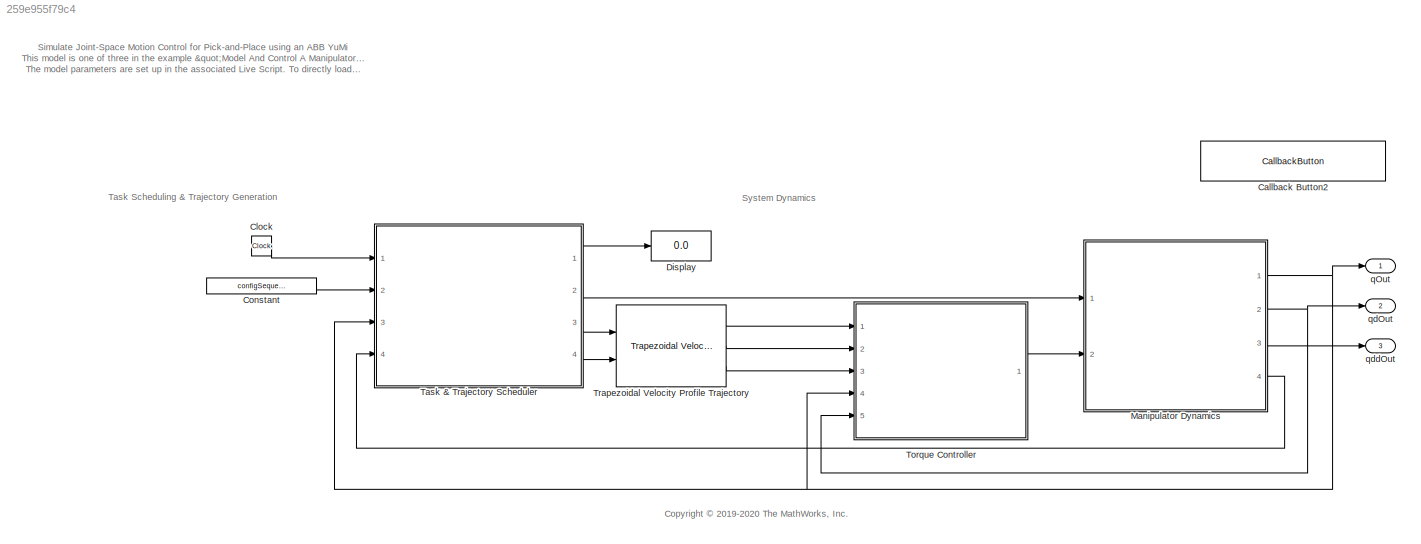
MODEL slx_259e955f79c4
KIND model
CONFIG AbsTol = 1e-2
CONFIG EnableMultiTasking = off
CONFIG FixedStep = auto
CONFIG MaxStep = 0.1
CONFIG MinStep = auto
CONFIG RelTol = 1e-2
CONFIG SampleTimeConstraint = Unconstrained
CONFIG SolverName = VariableStepAuto
CONFIG StartTime = 0.0
CONFIG StopTime = 20
WORKSPACE source: mxarray member
WORKSPACE jointLimits = [-2.94087978961 -2.50454747661 -2.94087978961 -2.15548162621 -5.06145483078 -1.53588974176 -3.99680398707 0 0 -2.94087978961 -2.50454747661 -2.94087978961 ... (36 elements, 18x2)]
BLOCK [CallbackButton] Callback Button2
  ButtonText = Load Default Parameters (will overwrite workspace)
  ClickFcn = robot = loadrobot('abbYumi', 'Gravity', [0 0 -9.81]);\nload abbExampleRSTVariables.mat;
BLOCK [Clock] Clock
BLOCK [Constant] Constant
  Value = configSequence
BLOCK [Display] Display
  Decimation = 1
  Ports = [1]
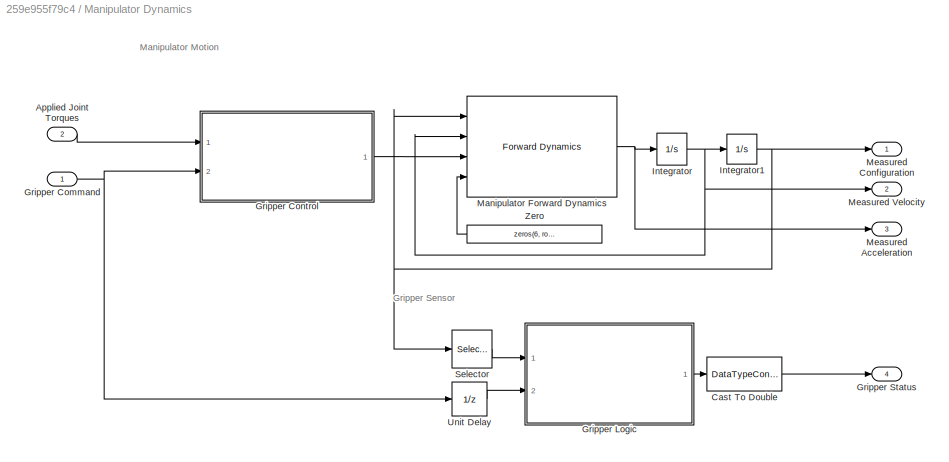
BLOCK [SubSystem] Manipulator Dynamics
  Ports = [2, 4]
  RequestExecContextInheritance = off
BLOCK [Inport] Manipulator Dynamics/Applied Joint Torques
  Port = 2
BLOCK [DataTypeConversion] Manipulator Dynamics/Cast To Double
  OutDataTypeStr = double
  RndMeth = Floor
  SaturateOnIntegerOverflow = off
BLOCK [Inport] Manipulator Dynamics/Gripper Command
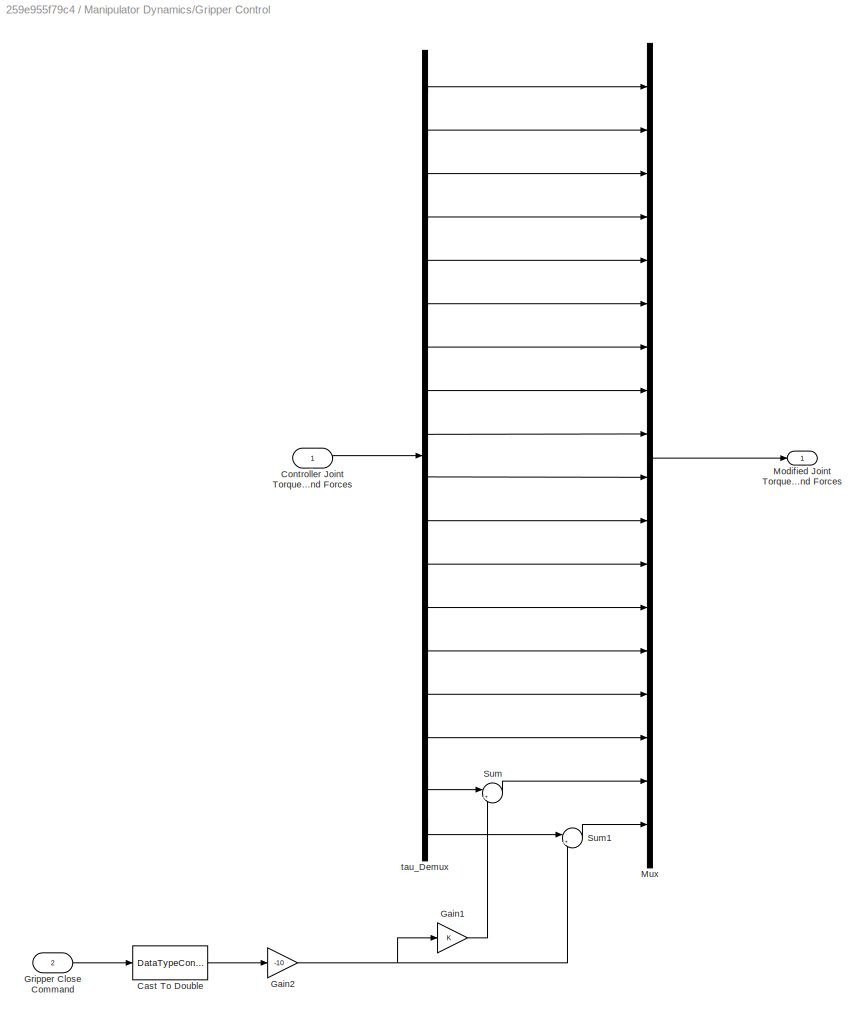
BLOCK [SubSystem] Manipulator Dynamics/Gripper Control
  Ports = [2, 1]
  RequestExecContextInheritance = off
BLOCK [DataTypeConversion] Manipulator Dynamics/Gripper Control/Cast To Double
  OutDataTypeStr = double
  RndMeth = Floor
  SaturateOnIntegerOverflow = off
BLOCK [Inport] Manipulator Dynamics/Gripper Control/Controller Joint Torques and Forces
BLOCK [Gain] Manipulator Dynamics/Gripper Control/Gain1
BLOCK [Gain] Manipulator Dynamics/Gripper Control/Gain2
  Gain = -10
BLOCK [Inport] Manipulator Dynamics/Gripper Control/Gripper Close Command
  Port = 2
BLOCK [Outport] Manipulator Dynamics/Gripper Control/Modified Joint Torques and Forces
BLOCK [Mux] Manipulator Dynamics/Gripper Control/Mux
  DisplayOption = bar
  Inputs = 18
  Ports = [18, 1]
BLOCK [Sum] Manipulator Dynamics/Gripper Control/Sum
  Inputs = |++
  Ports = [2, 1]
BLOCK [Sum] Manipulator Dynamics/Gripper Control/Sum1
  Inputs = |++
  Ports = [2, 1]
BLOCK [Demux] Manipulator Dynamics/Gripper Control/tau_Demux
  Outputs = 18
  Ports = [1, 18]
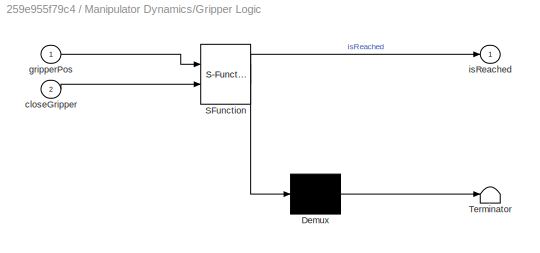
BLOCK [SubSystem] Manipulator Dynamics/Gripper Logic
  ErrorFcn = Stateflow.Translate.translate
  PermitHierarchicalResolution = ExplicitOnly
  Ports = [2, 1]
  RequestExecContextInheritance = off
  SFBlockType = MATLAB Function
  TreatAsAtomicUnit = on
BLOCK [Demux] Manipulator Dynamics/Gripper Logic/ Demux 
  Outputs = 1
  Ports = [1, 1]
BLOCK [S-Function] Manipulator Dynamics/Gripper Logic/ SFunction 
  EnableBusSupport = off
  FunctionName = sf_sfun
  PortCounts = [2 2]
  Ports = [2, 2]
  SFcnIsStateOwnerBlock = off
  SFunctionDeploymentMode = off
  Tag = Stateflow S-Function 1
BLOCK [Terminator] Manipulator Dynamics/Gripper Logic/ Terminator 
BLOCK [Inport] Manipulator Dynamics/Gripper Logic/closeGripper
  Port = 2
BLOCK [Inport] Manipulator Dynamics/Gripper Logic/gripperPos
BLOCK [Outport] Manipulator Dynamics/Gripper Logic/isReached
BLOCK [Outport] Manipulator Dynamics/Gripper Status
  Port = 4
  VectorParamsAs1DForOutWhenUnconnected = off
BLOCK [Integrator] Manipulator Dynamics/Integrator
  InitialCondition = dq0
  Ports = [1, 1]
BLOCK [Integrator] Manipulator Dynamics/Integrator1
  InitialCondition = q0
  LimitOutput = on
  LowerSaturationLimit = jointLimits(:,1)
  Ports = [1, 1]
  UpperSaturationLimit = jointLimits(:,2)
BLOCK [Reference] Manipulator Dynamics/Manipulator Forward Dynamics  REF=robotmaniplib/Forward Dynamics
  Ports = [4, 1]
  SourceBlock = robotmaniplib/Forward Dynamics
  SourceProductName = Robotics System Toolbox
  SourceType = Forward Dynamics
BLOCK [Outport] Manipulator Dynamics/Measured Acceleration
  Port = 3
  VectorParamsAs1DForOutWhenUnconnected = off
BLOCK [Outport] Manipulator Dynamics/Measured Configuration
  VectorParamsAs1DForOutWhenUnconnected = off
BLOCK [Outport] Manipulator Dynamics/Measured Velocity
  Port = 2
  VectorParamsAs1DForOutWhenUnconnected = off
BLOCK [Selector] Manipulator Dynamics/Selector
  IndexOptions = Index vector (dialog)
  Indices = [17 18]
  InputPortWidth = 18
  OutputSizes = 1
  Ports = [1, 1]
BLOCK [UnitDelay] Manipulator Dynamics/Unit Delay
  HasFrameUpgradeWarning = on
  SampleTime = -1
BLOCK [Constant] Manipulator Dynamics/Zero
  OutDataTypeStr = Inherit: Inherit via back propagation
  Value = zeros(6, robot.NumBodies)
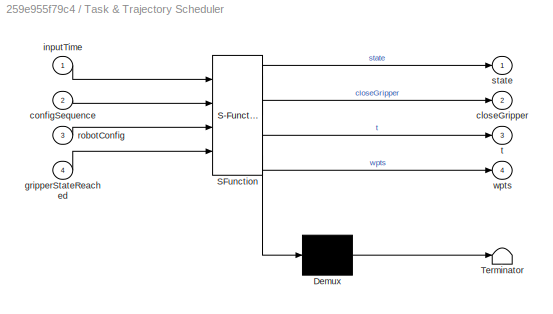
BLOCK [SubSystem] Task & Trajectory Scheduler
  ErrorFcn = Stateflow.Translate.translate
  PermitHierarchicalResolution = ExplicitOnly
  Ports = [4, 4]
  RequestExecContextInheritance = off
  SFBlockType = MATLAB Function
  TreatAsAtomicUnit = on
BLOCK [Demux] Task & Trajectory Scheduler/ Demux 
  Outputs = 1
  Ports = [1, 1]
BLOCK [S-Function] Task & Trajectory Scheduler/ SFunction 
  EnableBusSupport = off
  FunctionName = sf_sfun
  PortCounts = [4 5]
  Ports = [4, 5]
  SFcnIsStateOwnerBlock = off
  SFunctionDeploymentMode = off
  Tag = Stateflow S-Function 2
BLOCK [Terminator] Task & Trajectory Scheduler/ Terminator 
BLOCK [Outport] Task & Trajectory Scheduler/closeGripper
  Port = 2
BLOCK [Inport] Task & Trajectory Scheduler/configSequence
  Port = 2
BLOCK [Inport] Task & Trajectory Scheduler/gripperStateReached
  Port = 4
BLOCK [Inport] Task & Trajectory Scheduler/inputTime
BLOCK [Inport] Task & Trajectory Scheduler/robotConfig
  Port = 3
BLOCK [Outport] Task & Trajectory Scheduler/state
BLOCK [Outport] Task & Trajectory Scheduler/t
  Port = 3
BLOCK [Outport] Task & Trajectory Scheduler/wpts
  Port = 4
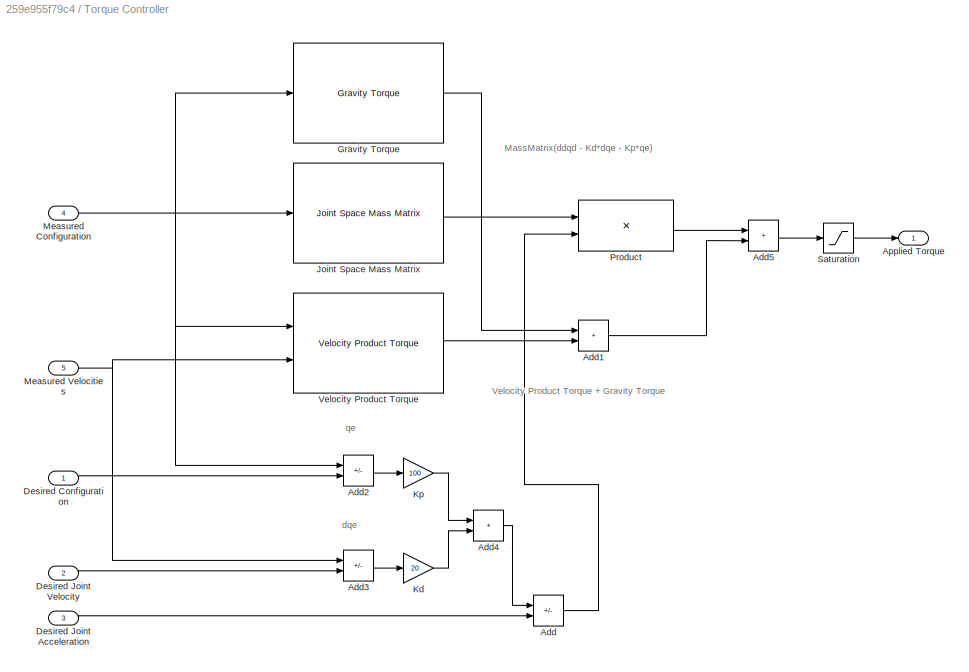
BLOCK [SubSystem] Torque Controller
  Ports = [5, 1]
  RequestExecContextInheritance = off
BLOCK [Sum] Torque Controller/Add
  IconShape = rectangular
  Inputs = -+
  Ports = [2, 1]
BLOCK [Sum] Torque Controller/Add1
  IconShape = rectangular
  Ports = [2, 1]
BLOCK [Sum] Torque Controller/Add2
  IconShape = rectangular
  Inputs = +-
  Ports = [2, 1]
BLOCK [Sum] Torque Controller/Add3
  IconShape = rectangular
  Inputs = +-
  Ports = [2, 1]
BLOCK [Sum] Torque Controller/Add4
  IconShape = rectangular
  Ports = [2, 1]
BLOCK [Sum] Torque Controller/Add5
  IconShape = rectangular
  Ports = [2, 1]
BLOCK [Outport] Torque Controller/Applied Torque
  VectorParamsAs1DForOutWhenUnconnected = off
BLOCK [Inport] Torque Controller/Desired Configuration
BLOCK [Inport] Torque Controller/Desired Joint Acceleration
  Port = 3
BLOCK [Inport] Torque Controller/Desired Joint Velocity
  Port = 2
BLOCK [Reference] Torque Controller/Gravity Torque  REF=robotmaniplib/Gravity Torque
  Ports = [1, 1]
  SourceBlock = robotmaniplib/Gravity Torque
  SourceProductName = Robotics System Toolbox
  SourceType = Gravity Torque
BLOCK [Reference] Torque Controller/Joint Space Mass Matrix  REF=robotmaniplib/Joint Space Mass Matrix
  Ports = [1, 1]
  SourceBlock = robotmaniplib/Joint Space Mass Matrix
  SourceProductName = Robotics System Toolbox
  SourceType = Joint Space Mass Matrix
BLOCK [Gain] Torque Controller/Kd
  Gain = 20
BLOCK [Gain] Torque Controller/Kp
  Gain = 100
BLOCK [Inport] Torque Controller/Measured Configuration
  Port = 4
BLOCK [Inport] Torque Controller/Measured Velocities
  Port = 5
BLOCK [Product] Torque Controller/Product
  Multiplication = Matrix(*)
  Ports = [2, 1]
BLOCK [Saturate] Torque Controller/Saturation
  LowerLimit = -100
  UpperLimit = 100
BLOCK [Reference] Torque Controller/Velocity Product Torque  REF=robotmaniplib/Velocity Product Torque
  Ports = [2, 1]
  SourceBlock = robotmaniplib/Velocity Product Torque
  SourceProductName = Robotics System Toolbox
  SourceType = Velocity Product Torque
BLOCK [Reference] Trapezoidal Velocity Profile Trajectory  REF=robotcorelib/Trapezoidal Velocity Profile Trajectory
  Ports = [2, 3]
  SourceBlock = robotcorelib/Trapezoidal Velocity Profile Trajectory
  SourceProductName = Robotics System Toolbox
  SourceType = robotics.slcore.internal.block.TrapVelTrajSys
BLOCK [Outport] qOut
BLOCK [Outport] qdOut
  Port = 2
BLOCK [Outport] qddOut
  Port = 3
ANNOTATION (root): <copyright redacted>
ANNOTATION (root): Simulate Joint-Space Motion Control for Pick-and-Place using an ABB YuMi This model is one of three in the example "Model And Control A Manipulator Arm with RST And Simscape". This model is one of three in the example "Model And Control A Manipulator Arm with RST And Simscape". The example shows how to design and simulate a pick-and-place task using an ABB YuMi arm. It also shows how to model a sy...<+470ch>
ANNOTATION (root): System Dynamics
ANNOTATION (root): Task Scheduling & Trajectory Generation
ANNOTATION Manipulator Dynamics: Gripper Sensor
ANNOTATION Manipulator Dynamics: Manipulator Motion
ANNOTATION Torque Controller: qe
ANNOTATION Torque Controller: dqe
ANNOTATION Torque Controller: MassMatrix(ddqd - Kd*dqe - Kp*qe)
ANNOTATION Torque Controller: Velocity Product Torque + Gravity Torque
LINE Clock:1 -> Task & Trajectory Scheduler:1
LINE Constant:1 -> Task & Trajectory Scheduler:2
LINE Manipulator Dynamics/Applied Joint Torques:1 -> Manipulator Dynamics/Gripper Control:1
LINE Manipulator Dynamics/Cast To Double:1 -> Manipulator Dynamics/Gripper Status:1
NET Manipulator Dynamics/Gripper Command:1 -> Manipulator Dynamics/Gripper Control:2, Manipulator Dynamics/Unit Delay:1
LINE Manipulator Dynamics/Gripper Control/Cast To Double:1 -> Manipulator Dynamics/Gripper Control/Gain2:1
LINE Manipulator Dynamics/Gripper Control/Controller Joint Torques and Forces:1 -> Manipulator Dynamics/Gripper Control/tau_Demux:1
LINE Manipulator Dynamics/Gripper Control/Gain1:1 -> Manipulator Dynamics/Gripper Control/Sum:2
NET Manipulator Dynamics/Gripper Control/Gain2:1 -> Manipulator Dynamics/Gripper Control/Gain1:1, Manipulator Dynamics/Gripper Control/Sum1:2
LINE Manipulator Dynamics/Gripper Control/Gripper Close Command:1 -> Manipulator Dynamics/Gripper Control/Cast To Double:1
LINE Manipulator Dynamics/Gripper Control/Mux:1 -> Manipulator Dynamics/Gripper Control/Modified Joint Torques and Forces:1
LINE Manipulator Dynamics/Gripper Control/Sum1:1 -> Manipulator Dynamics/Gripper Control/Mux:18
LINE Manipulator Dynamics/Gripper Control/Sum:1 -> Manipulator Dynamics/Gripper Control/Mux:17
LINE Manipulator Dynamics/Gripper Control/tau_Demux:1 -> Manipulator Dynamics/Gripper Control/Mux:1
LINE Manipulator Dynamics/Gripper Control/tau_Demux:10 -> Manipulator Dynamics/Gripper Control/Mux:10
LINE Manipulator Dynamics/Gripper Control/tau_Demux:11 -> Manipulator Dynamics/Gripper Control/Mux:11
LINE Manipulator Dynamics/Gripper Control/tau_Demux:12 -> Manipulator Dynamics/Gripper Control/Mux:12
LINE Manipulator Dynamics/Gripper Control/tau_Demux:13 -> Manipulator Dynamics/Gripper Control/Mux:13
LINE Manipulator Dynamics/Gripper Control/tau_Demux:14 -> Manipulator Dynamics/Gripper Control/Mux:14
LINE Manipulator Dynamics/Gripper Control/tau_Demux:15 -> Manipulator Dynamics/Gripper Control/Mux:15
LINE Manipulator Dynamics/Gripper Control/tau_Demux:16 -> Manipulator Dynamics/Gripper Control/Mux:16
LINE Manipulator Dynamics/Gripper Control/tau_Demux:17 -> Manipulator Dynamics/Gripper Control/Sum:1
LINE Manipulator Dynamics/Gripper Control/tau_Demux:18 -> Manipulator Dynamics/Gripper Control/Sum1:1
LINE Manipulator Dynamics/Gripper Control/tau_Demux:2 -> Manipulator Dynamics/Gripper Control/Mux:2
LINE Manipulator Dynamics/Gripper Control/tau_Demux:3 -> Manipulator Dynamics/Gripper Control/Mux:3
LINE Manipulator Dynamics/Gripper Control/tau_Demux:4 -> Manipulator Dynamics/Gripper Control/Mux:4
LINE Manipulator Dynamics/Gripper Control/tau_Demux:5 -> Manipulator Dynamics/Gripper Control/Mux:5
LINE Manipulator Dynamics/Gripper Control/tau_Demux:6 -> Manipulator Dynamics/Gripper Control/Mux:6
LINE Manipulator Dynamics/Gripper Control/tau_Demux:7 -> Manipulator Dynamics/Gripper Control/Mux:7
LINE Manipulator Dynamics/Gripper Control/tau_Demux:8 -> Manipulator Dynamics/Gripper Control/Mux:8
LINE Manipulator Dynamics/Gripper Control/tau_Demux:9 -> Manipulator Dynamics/Gripper Control/Mux:9
LINE Manipulator Dynamics/Gripper Control:1 -> Manipulator Dynamics/Manipulator Forward Dynamics:3
LINE Manipulator Dynamics/Gripper Logic:1 -> Manipulator Dynamics/Cast To Double:1
NET Manipulator Dynamics/Integrator1:1 -> Manipulator Dynamics/Manipulator Forward Dynamics:1, Manipulator Dynamics/Measured Configuration:1, Manipulator Dynamics/Selector:1
NET Manipulator Dynamics/Integrator:1 -> Manipulator Dynamics/Integrator1:1, Manipulator Dynamics/Manipulator Forward Dynamics:2, Manipulator Dynamics/Measured Velocity:1
NET Manipulator Dynamics/Manipulator Forward Dynamics:1 -> Manipulator Dynamics/Integrator:1, Manipulator Dynamics/Measured Acceleration:1
LINE Manipulator Dynamics/Selector:1 -> Manipulator Dynamics/Gripper Logic:1
LINE Manipulator Dynamics/Unit Delay:1 -> Manipulator Dynamics/Gripper Logic:2
LINE Manipulator Dynamics/Zero:1 -> Manipulator Dynamics/Manipulator Forward Dynamics:4
NET Manipulator Dynamics:1 -> Task & Trajectory Scheduler:3, Torque Controller:4, qOut:1
NET Manipulator Dynamics:2 -> Torque Controller:5, qdOut:1
LINE Manipulator Dynamics:3 -> qddOut:1
LINE Manipulator Dynamics:4 -> Task & Trajectory Scheduler:4
LINE Task & Trajectory Scheduler:1 -> Display:1
LINE Task & Trajectory Scheduler:2 -> Manipulator Dynamics:1
LINE Task & Trajectory Scheduler:3 -> Trapezoidal Velocity Profile Trajectory:1
LINE Task & Trajectory Scheduler:4 -> Trapezoidal Velocity Profile Trajectory:2
LINE Torque Controller/Add1:1 -> Torque Controller/Add5:2
LINE Torque Controller/Add2:1 -> Torque Controller/Kp:1
LINE Torque Controller/Add3:1 -> Torque Controller/Kd:1
LINE Torque Controller/Add4:1 -> Torque Controller/Add:1
LINE Torque Controller/Add5:1 -> Torque Controller/Saturation:1
LINE Torque Controller/Add:1 -> Torque Controller/Product:2
LINE Torque Controller/Desired Configuration:1 -> Torque Controller/Add2:2
LINE Torque Controller/Desired Joint Acceleration:1 -> Torque Controller/Add:2
LINE Torque Controller/Desired Joint Velocity:1 -> Torque Controller/Add3:2
LINE Torque Controller/Gravity Torque:1 -> Torque Controller/Add1:1
LINE Torque Controller/Joint Space Mass Matrix:1 -> Torque Controller/Product:1
LINE Torque Controller/Kd:1 -> Torque Controller/Add4:2
LINE Torque Controller/Kp:1 -> Torque Controller/Add4:1
NET Torque Controller/Measured Configuration:1 -> Torque Controller/Add2:1, Torque Controller/Gravity Torque:1, Torque Controller/Joint Space Mass Matrix:1, Torque Controller/Velocity Product Torque:1
NET Torque Controller/Measured Velocities:1 -> Torque Controller/Add3:1, Torque Controller/Velocity Product Torque:2
LINE Torque Controller/Product:1 -> Torque Controller/Add5:1
LINE Torque Controller/Saturation:1 -> Torque Controller/Applied Torque:1
LINE Torque Controller/Velocity Product Torque:1 -> Torque Controller/Add1:2
LINE Torque Controller:1 -> Manipulator Dynamics:2
LINE Trapezoidal Velocity Profile Trajectory:1 -> Torque Controller:1
LINE Trapezoidal Velocity Profile Trajectory:2 -> Torque Controller:2
LINE Trapezoidal Velocity Profile Trajectory:3 -> Torque Controller:3
note: NET lines group one-source signal fan-out (src -> all destinations, sorted); 1:1 wires keep LINE
CHART Manipulator Dynamics/Gripper Logic states=1 transitions=1
  STATE_LABEL 'eML_blk_kernel()'
  STATE_LABEL 'SCRIPT:\nfunction isReached = isGripperStateReached(gripperPos, closeGripper)\n\n    isReached = false;\n\n    % Define key values\n    posTgtThreshold = 0.01;\n    openValue = 0.025;\n    closeValue = 0;\n    \n    if closeGripper\n        gripperTarget = closeValue;\n    else\n        gripperTarget = openValue;\n    end\n    \n    % Check if the gripper joints have reached their open target\n    diffWpts = abs(g...<+169ch>'
CHART Task & Trajectory Scheduler states=1 transitions=1
  STATE_LABEL 'eML_blk_kernel()'
  STATE_LABEL 'SCRIPT:\nfunction [state, closeGripper, t, wpts] = commandLogic(inputTime, configSequence, robotConfig, gripperStateReached)\n\npersistent motionState\npersistent resetTimeValue\n\n% Set some variables\nposTgtThreshold = 0.015;\n\n% Initialize persistent variables\nif isempty(motionState)\n    motionState = 0;\nend\nif isempty(resetTimeValue)\n    resetTimeValue = 0;\nend\n\n% Output the state and time\nstate = mot...<+2067ch>'
CHART  states=0 transitions=0
CHART  states=0 transitions=0
